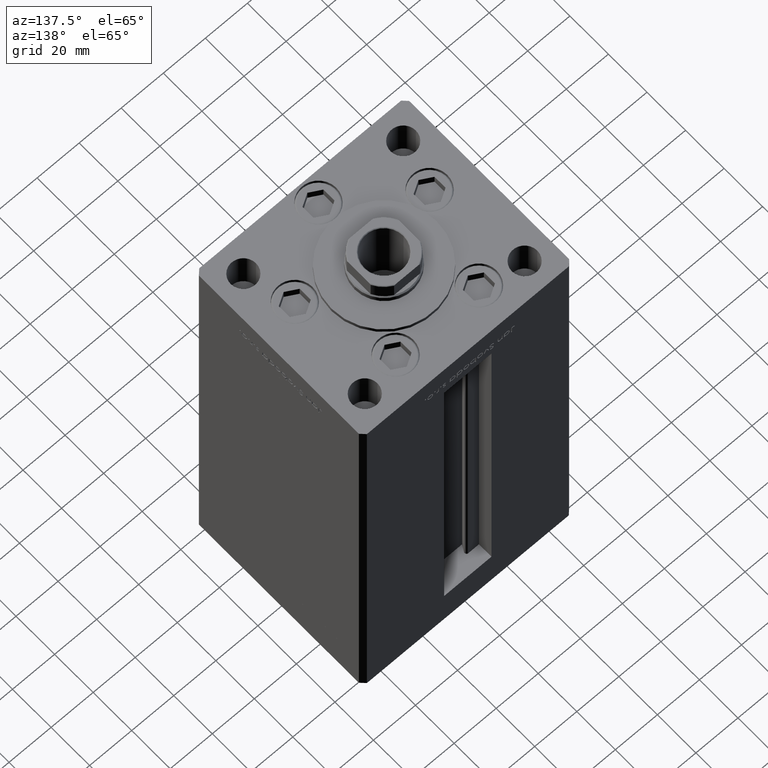
[diagram: clean part render]
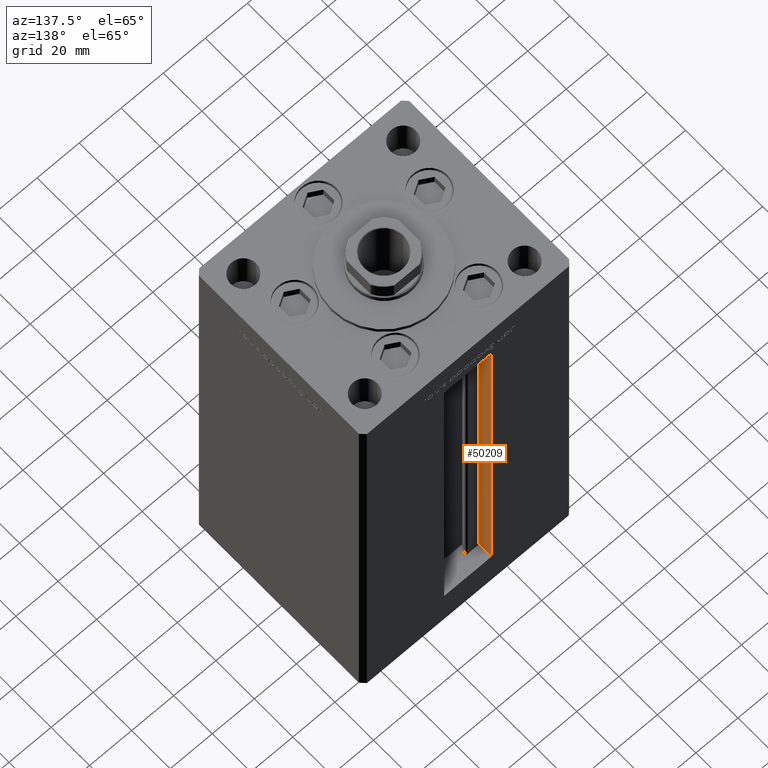
[diagram: same view with one face highlighted and labeled with its STEP entity id]
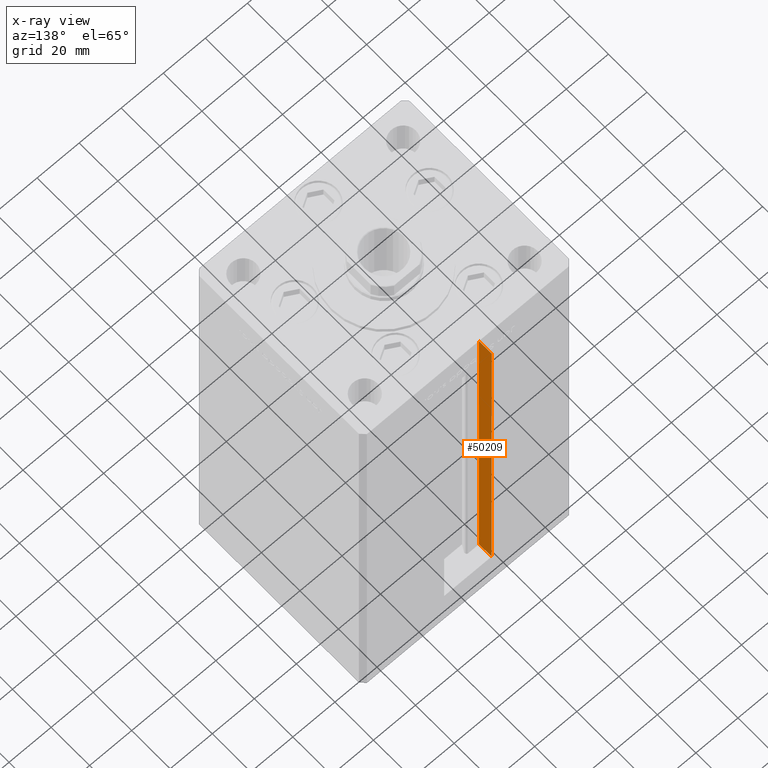
[diagram: x-ray of the same camera — body ghosted, the highlighted face saturated]
A machine part, auxiliary view. The second image highlights one B-rep face of the part: STEP entity #50209.
The next image is the same camera in x-ray: the body ghosted, the highlighted face saturated — about 0% of this face is hidden behind the body in this view.
In plain terms, the highlighted planar face has unit normal (-1, 0, 0).
Its self-contained STEP definition (entity closure, byte-faithful):
#1197 = CARTESIAN_POINT ( 'NONE',  ( -11.24999999999999822, 36.99999999999999289, 168.5000000000000000 ) ) ;
#2363 = DIRECTION ( 'NONE',  ( -0.000000000000000000, -1.000000000000000000, -0.000000000000000000 ) ) ;
#2417 = FACE_OUTER_BOUND ( 'NONE', #23172, .T. ) ;
#2446 = CARTESIAN_POINT ( 'NONE',  ( -11.24999999999999822, 43.50000000000000000, 168.5000000000000000 ) ) ;
#5501 = ORIENTED_EDGE ( 'NONE', *, *, #45770, .F. ) ;
#5568 = ORIENTED_EDGE ( 'NONE', *, *, #39239, .T. ) ;
#6047 = CARTESIAN_POINT ( 'NONE',  ( -11.24999999999999822, 0.000000000000000000, 168.5000000000000000 ) ) ;
#9056 = LINE ( 'NONE', #29346, #29217 ) ;
#9992 = LINE ( 'NONE', #6047, #28407 ) ;
#14405 = ORIENTED_EDGE ( 'NONE', *, *, #37536, .F. ) ;
#16271 = VERTEX_POINT ( 'NONE', #2446 ) ;
#21111 = ORIENTED_EDGE ( 'NONE', *, *, #38510, .F. ) ;
#22465 = DIRECTION ( 'NONE',  ( 0.000000000000000000, 0.000000000000000000, 1.000000000000000000 ) ) ;
#23172 = EDGE_LOOP ( 'NONE', ( #14405, #21111, #5568, #5501 ) ) ;
#23298 = VECTOR ( 'NONE', #35703, 1000.000000000000000 ) ;
#24351 = AXIS2_PLACEMENT_3D ( 'NONE', #38310, #42530, #22465 ) ;
#24543 = CARTESIAN_POINT ( 'NONE',  ( -11.24999999999999822, 36.99999999999999289, 0.000000000000000000 ) ) ;
#26992 = LINE ( 'NONE', #46816, #23298 ) ;
#28407 = VECTOR ( 'NONE', #41931, 1000.000000000000000 ) ;
#29217 = VECTOR ( 'NONE', #2363, 1000.000000000000000 ) ;
#29346 = CARTESIAN_POINT ( 'NONE',  ( -11.24999999999999822, 36.99999999999999289, 0.000000000000000000 ) ) ;
#35703 = DIRECTION ( 'NONE',  ( -0.000000000000000000, -0.000000000000000000, 1.000000000000000000 ) ) ;
#36800 = CARTESIAN_POINT ( 'NONE',  ( -11.24999999999999822, 36.99999999999999289, 0.000000000000000000 ) ) ;
#36900 = VERTEX_POINT ( 'NONE', #37132 ) ;
#37132 = CARTESIAN_POINT ( 'NONE',  ( -11.24999999999999822, 43.50000000000000000, 0.000000000000000000 ) ) ;
#37208 = LINE ( 'NONE', #24543, #39276 ) ;
#37536 = EDGE_CURVE ( 'NONE', #49060, #51100, #37208, .T. ) ;
#38310 = CARTESIAN_POINT ( 'NONE',  ( -11.24999999999999822, 36.99999999999999289, 0.000000000000000000 ) ) ;
#38510 = EDGE_CURVE ( 'NONE', #36900, #49060, #9056, .T. ) ;
#39239 = EDGE_CURVE ( 'NONE', #36900, #16271, #26992, .T. ) ;
#39276 = VECTOR ( 'NONE', #48813, 1000.000000000000000 ) ;
#41931 = DIRECTION ( 'NONE',  ( 0.000000000000000000, 1.000000000000000000, 0.000000000000000000 ) ) ;
#42013 = PLANE ( 'NONE',  #24351 ) ;
#42530 = DIRECTION ( 'NONE',  ( -1.000000000000000000, 0.000000000000000000, 0.000000000000000000 ) ) ;
#45770 = EDGE_CURVE ( 'NONE', #51100, #16271, #9992, .T. ) ;
#46816 = CARTESIAN_POINT ( 'NONE',  ( -11.24999999999999822, 43.50000000000000000, 0.000000000000000000 ) ) ;
#48813 = DIRECTION ( 'NONE',  ( -0.000000000000000000, -0.000000000000000000, 1.000000000000000000 ) ) ;
#49060 = VERTEX_POINT ( 'NONE', #36800 ) ;
#50209 = ADVANCED_FACE ( 'NONE', ( #2417 ), #42013, .F. ) ;
#51100 = VERTEX_POINT ( 'NONE', #1197 ) ;